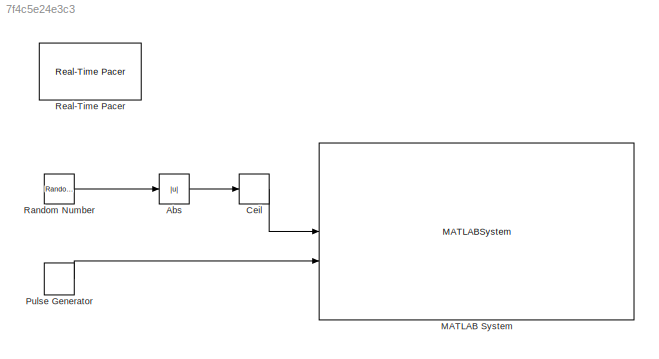
MODEL slx_7f4c5e24e3c3
KIND model
CONFIG AbsTol = auto
CONFIG EnableMultiTasking = off
CONFIG FixedStep = 1
CONFIG MaxStep = auto
CONFIG MinStep = auto
CONFIG RelTol = 1e-3
CONFIG SampleTimeConstraint = Unconstrained
CONFIG SolverName = FixedStepAuto
CONFIG StartTime = 0.0
CONFIG StopTime = 10.0
BLOCK [Abs] Abs
  SaturateOnIntegerOverflow = off
BLOCK [Rounding] Ceil
  Operator = ceil
BLOCK [MATLABSystem] MATLAB System
  MaskDisplay = disp('ModbusTCP_RW');\nport_label('input',1,'holdingregs_in');\nport_label('input',2,'coils_in');\nport_label('output',1,'coil_vals');\nport_label('output',2,'holdingreg_vals');\nport_label('output',3,'inputreg_vals');\nport_label('output',4,'discreteinput_vals');
  MaskType = ModbusTCP_RW
  SimulateUsing = Interpreted execution
  System = ModbusTCP_RW
  address = 127.0.0.1
  coils_read_start = 1
  coils_to_read = 10
  coils_write_start = 1
  di_read_start = 1
  di_to_read = 10
  hr_read_start = 1
  hr_to_read = 10
  hr_write_start = 1
  ir_read_start = 1
  ir_to_read = 10
  port = 5020
  sampling_time = 1
BLOCK [DiscretePulseGenerator] Pulse Generator
  PulseType = Time based
  PulseWidth = 50
BLOCK [RandomNumber] Random Number
  SampleTime = 1
  Variance = ones(5,1)
BLOCK [Reference] Real-Time Pacer  REF=realtime_pacer_lib/Real-Time Pacer
  SourceBlock = realtime_pacer_lib/Real-Time Pacer
  SourceProductName = Real-Time Pacer
  SourceType = RealTime_Pacer
LINE Abs:1 -> Ceil:1
LINE Ceil:1 -> MATLAB System:1
LINE Pulse Generator:1 -> MATLAB System:2
LINE Random Number:1 -> Abs:1
